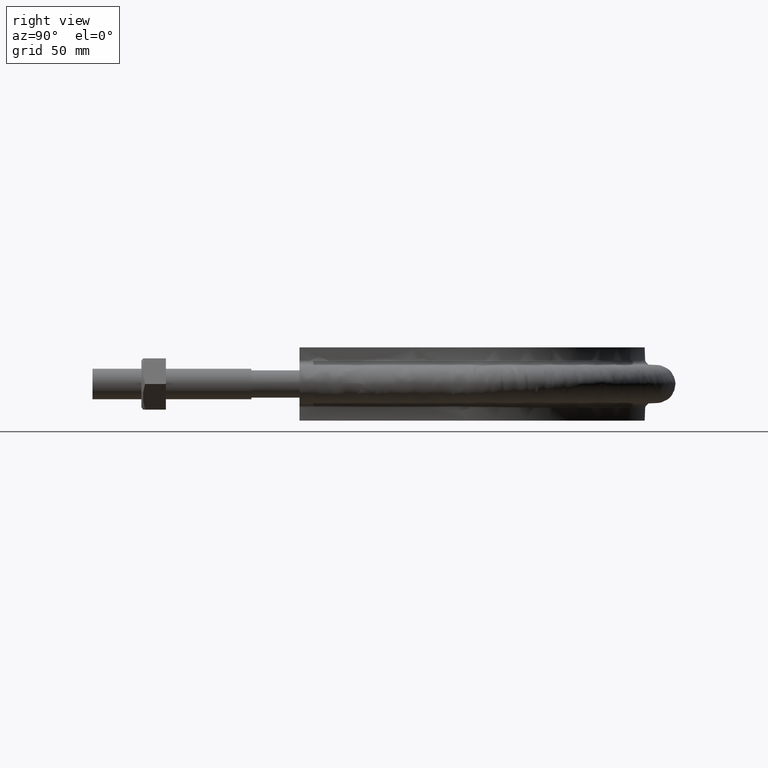
[diagram: clean part render]
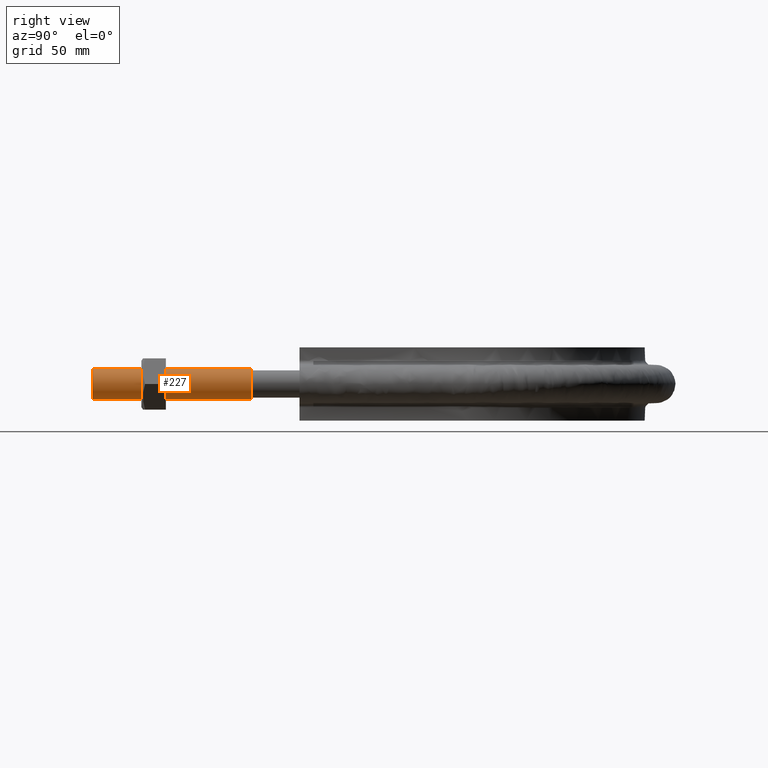
[diagram: same view with one face highlighted and labeled with its STEP entity id]
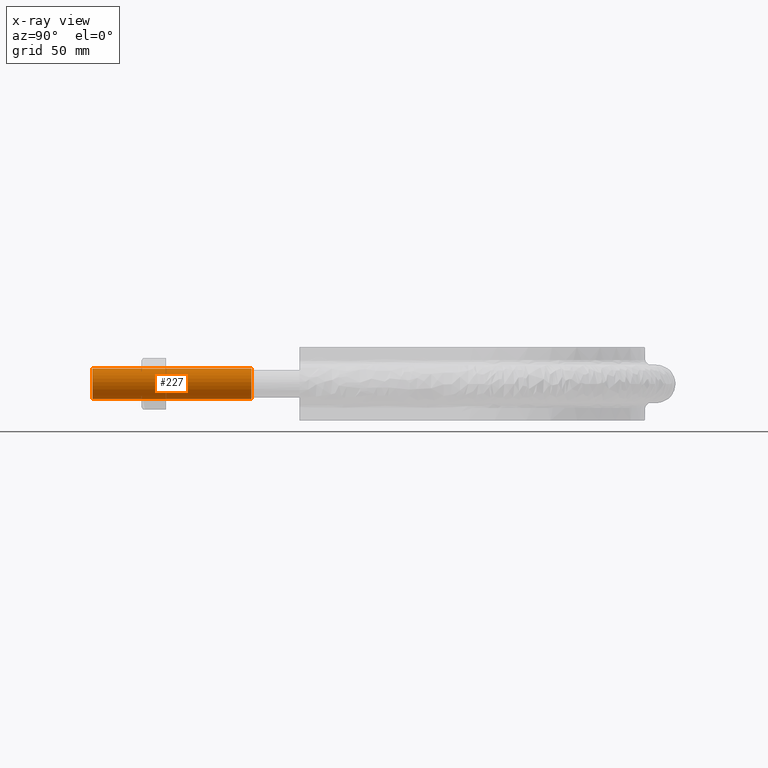
[diagram: x-ray of the same camera — body ghosted, the highlighted face saturated]
A machine part, right view. The second image highlights one B-rep face of the part: STEP entity #227.
The next image is the same camera in x-ray: the body ghosted, the highlighted face saturated — about 0% of this face is hidden behind the body in this view.
In plain terms, the highlighted cylindrical surface (bore or boss wall) has radius 6.25 mm, axis along (-0, -1, 0).
Its self-contained STEP definition (entity closure, byte-faithful):
#227 = ADVANCED_FACE( '', ( #280, #281 ), #282, .T. );
#280 = FACE_OUTER_BOUND( '', #1053, .T. );
#281 = FACE_OUTER_BOUND( '', #1054, .T. );
#282 = CYLINDRICAL_SURFACE( '', #1055, 6.25000000000001 );
#1053 = EDGE_LOOP( '', ( #1379 ) );
#1054 = EDGE_LOOP( '', ( #1380 ) );
#1055 = AXIS2_PLACEMENT_3D( '', #1381, #1382, #1383 );
#1379 = ORIENTED_EDGE( '', *, *, #1622, .F. );
#1380 = ORIENTED_EDGE( '', *, *, #1623, .T. );
#1381 = CARTESIAN_POINT( '', ( 77.0000000000000, 65.0000000000000, -1.98998532496136E-014 ) );
#1382 = DIRECTION( '', ( -2.44921270764475E-016, -1.00000000000000, 3.06151588455594E-016 ) );
#1383 = DIRECTION( '', ( 1.00000000000000, -2.44921270764475E-016, 0.000000000000000 ) );
#1622 = EDGE_CURVE( '', #1723, #1723, #1724, .T. );
#1623 = EDGE_CURVE( '', #1725, #1725, #1726, .T. );
#1723 = VERTEX_POINT( '', #2041 );
#1724 = CIRCLE( '', #2042, 6.25000000000001 );
#1725 = VERTEX_POINT( '', #2043 );
#1726 = CIRCLE( '', #2044, 6.25000000000001 );
#2041 = CARTESIAN_POINT( '', ( 77.0000000000000, -1.57912352356619E-014, -6.25000000000001 ) );
#2042 = AXIS2_PLACEMENT_3D( '', #2336, #2337, #2338 );
#2043 = CARTESIAN_POINT( '', ( 77.0000000000000, 65.0000000000000, -6.25000000000003 ) );
#2044 = AXIS2_PLACEMENT_3D( '', #2339, #2340, #2341 );
#2336 = CARTESIAN_POINT( '', ( 77.0000000000000, -1.38777878078145E-014, 1.23259516440783E-029 ) );
#2337 = DIRECTION( '', ( -2.44921270764475E-016, -1.00000000000000, 3.06151588455594E-016 ) );
#2338 = DIRECTION( '', ( 0.000000000000000, -3.06151588455594E-016, -1.00000000000000 ) );
#2339 = CARTESIAN_POINT( '', ( 77.0000000000000, 65.0000000000000, -1.98998532496136E-014 ) );
#2340 = DIRECTION( '', ( -2.44921270764475E-016, -1.00000000000000, 3.06151588455594E-016 ) );
#2341 = DIRECTION( '', ( 0.000000000000000, -3.06151588455594E-016, -1.00000000000000 ) );